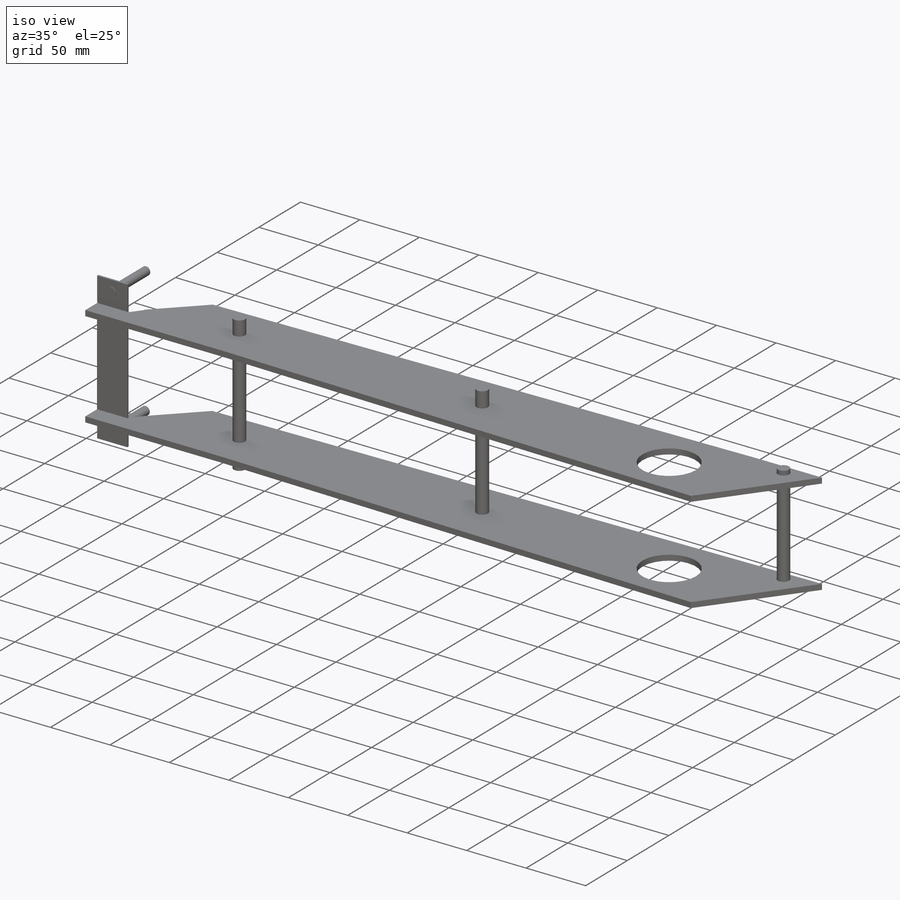
[diagram: iso view]
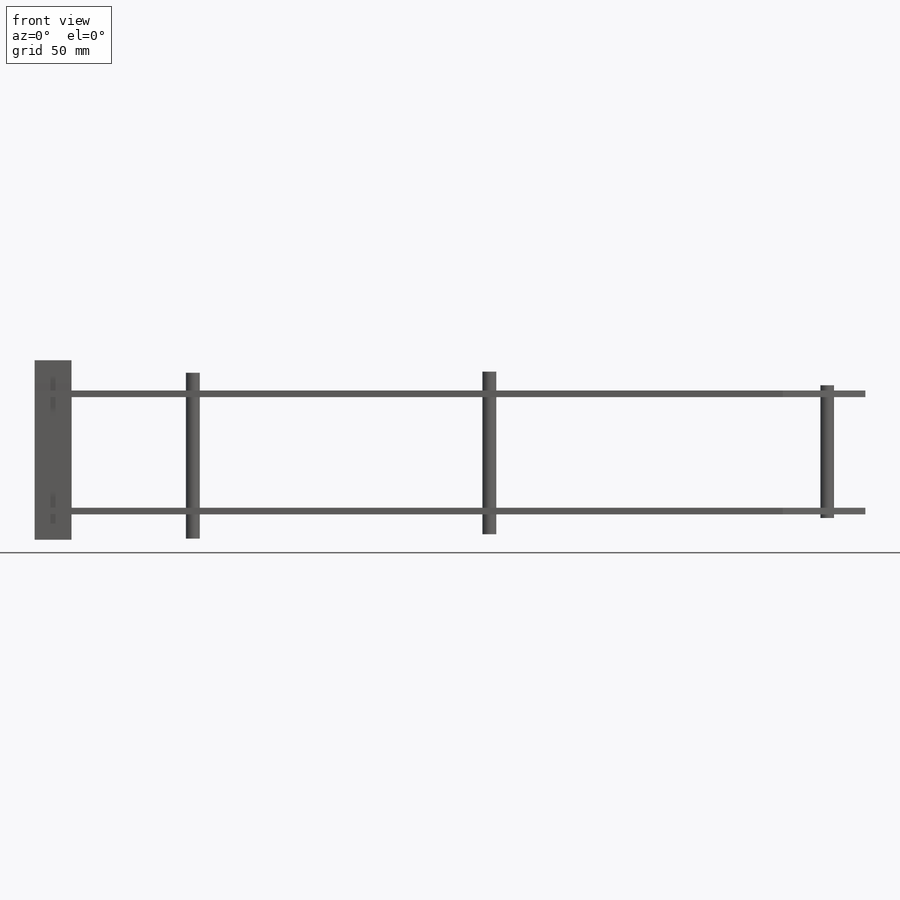
[diagram: front view]
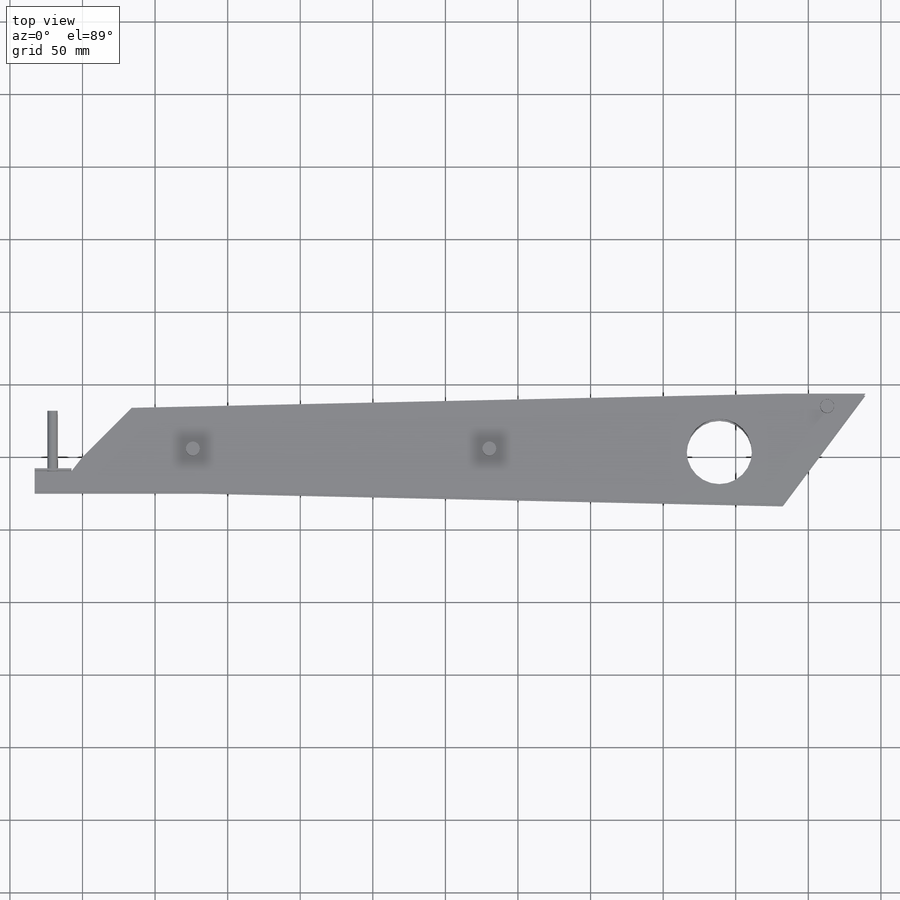
[diagram: top view]
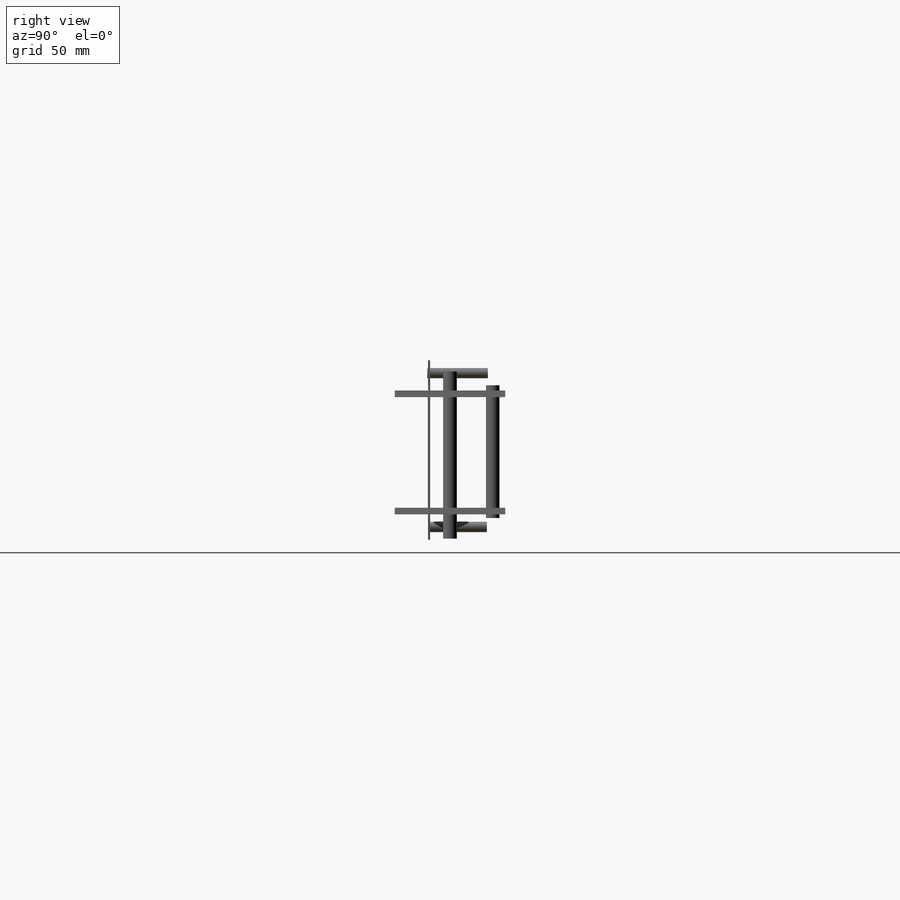
[diagram: right view]
SOLIDWORKS PART (.sldprt)
format: sldprt  version: not decoded by parser v0  size: 522,240 bytes
history: native  units: mm
features: sketch x30, cut_extrude x19, extrude x11, plane x4, material x1 (+8 scaffold rows collapsed)
feature tree (73):
  scaffold x8  (default folders/planes/origin — collapsed)
  material  "Material <sin especificar>"
  plane  "Alzado"
  plane  "Planta"
  plane  "Vista lateral"
  sketch  "Croquis1"  dims[c1.D1=584.2mm c1.D2=50.8mm c1.D3=76.2mm c1.D4=~74.777051mm c2.D3=~76.409993mm c2.D1=584.2mm c3.D3=76.2mm]
  extrude  "Saliente-Extruir2"  Depth=4.572mm
  sketch  "Croquis4"  dims[D2=9.525mm D3=9.525mm D1=177.8mm]
  cut_extrude  "Cortar-Extruir2"  Depth=98.552mm
  sketch  "Croquis5"  dims[D1=15.875mm]
  cut_extrude  "Cortar-Extruir5"  Depth=59.182mm
  sketch  "Croquis6"  dims[D1=9.525mm]
  extrude  "Saliente-Extruir4"  Depth=94.488mm
  sketch  "Croquis7"  dims[D1=9.525mm]
  extrude  "Saliente-Extruir5"  Depth=97.536mm
  plane  "Plano32"  Offset=76.2mm
  sketch  "Croquis10"  dims[D1=15.875mm]
  extrude  "Saliente-Extruir6"  Depth=4.572mm
  sketch  "Croquis11"  dims[D1=44.958mm]
  cut_extrude  "Cortar-Extruir6"  Depth=123.444mm
  sketch  "Croquis12"  dims[D1=9.652mm]
  cut_extrude  "Cortar-Extruir7"  Depth=187.96mm
  sketch  "Croquis13"
  extrude  "Saliente-Extruir8"  Depth=87.884mm
  sketch  "Croquis14"
  cut_extrude  "Cortar-Extruir8"  Depth=84.074mm
  sketch  "Croquis15"  dims[D1=114.3mm]
  extrude  "Saliente-Extruir13"  Depth=86.106mm
  sketch  "Croquis17"  dims[D1=~16.693335mm]
  extrude  "Saliente-Extruir14"  Depth=98.298mm
  sketch  "Croquis18"
  cut_extrude  "Cortar-Extruir9"  Depth=127.508mm
  sketch  "Croquis19"
  cut_extrude  "Cortar-Extruir12"  Depth=127.508mm
  sketch  "Croquis20"
  cut_extrude  "Cortar-Extruir13"  Depth=289.306mm
  sketch  "Croquis21"
  cut_extrude  "Cortar-Extruir14"  Depth=662.432mm
  sketch  "Croquis22"
  cut_extrude  "Cortar-Extruir15"  Depth=397.51mm
  sketch  "Croquis23"
  extrude  "Saliente-Extruir15"  Depth=95.504mm
  sketch  "Croquis24"
  cut_extrude  "Cortar-Extruir17"  Depth=83.566mm
  sketch  "Croquis25"
  cut_extrude  "Cortar-Extruir18"  Depth=88.138mm
  sketch  "Croquis26"
  cut_extrude  "Cortar-Extruir19"  Depth=41.402mm
  sketch  "Croquis27"
  cut_extrude  "Cortar-Extruir20"  Depth=48.26mm
  sketch  "Croquis28"
  cut_extrude  "Cortar-Extruir21"  Depth=254mm
  sketch  "Croquis29"
  cut_extrude  "Cortar-Extruir22"  Depth=340.106mm
  sketch  "Croquis30"
  extrude  "Saliente-Extruir19"  Depth=80.264mm
  sketch  "Croquis32"
  cut_extrude  "Cortar-Extruir24"  Depth=209.042mm
  sketch  "Croquis33"
  extrude  "Saliente-Extruir20"  Depth=111.76mm
  sketch  "Croquis34"
  cut_extrude  "Cortar-Extruir25"  Depth=200.406mm
  sketch  "Croquis35"  dims[D1=7.112mm]
  extrude  "Saliente-Extruir21"  Depth=110.998mm
  sketch  "Croquis36"
  cut_extrude  "Cortar-Extruir26"  Depth=55.626mm
decode coverage: 41 of 60 modeling features carry decoded parameters
note: ~ marks probable driven/reference dimensions
note: suppression state not decoded; provenance and decode notes live in map.json
